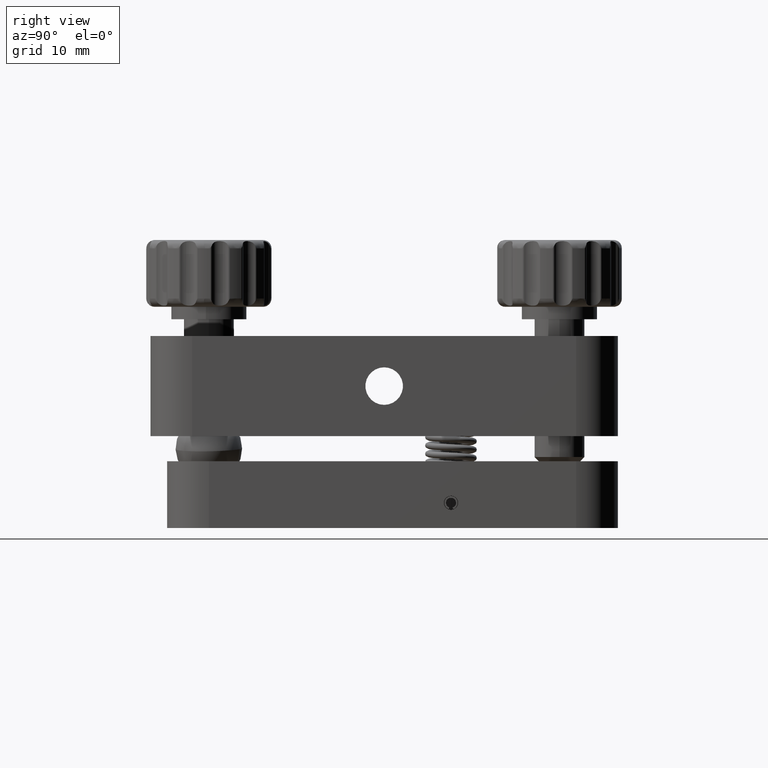
[diagram: clean part render]
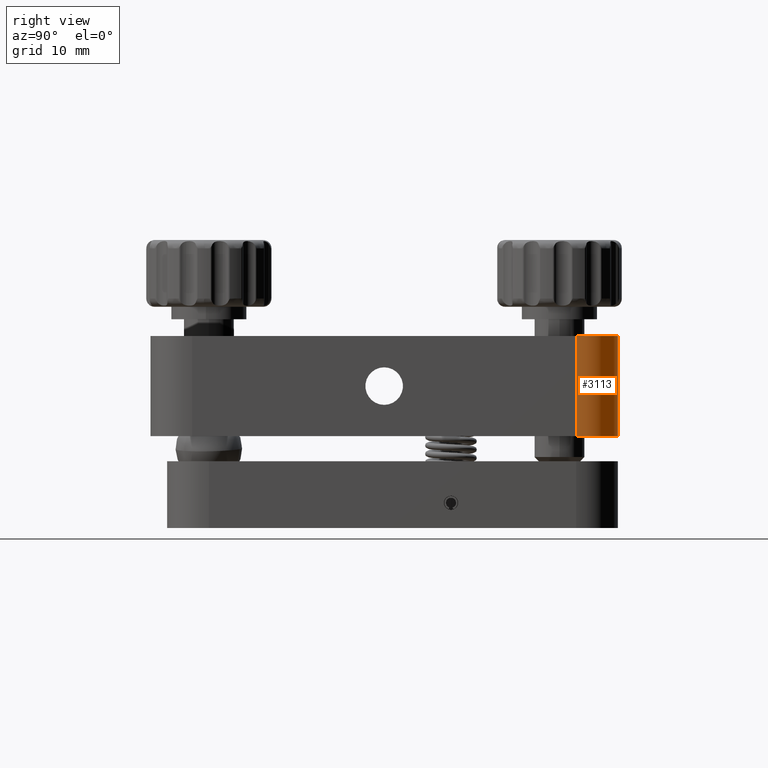
[diagram: same view with one face highlighted and labeled with its STEP entity id]
A machine part, right view. The second image highlights one B-rep face of the part: STEP entity #3113.
In plain terms, the highlighted cylindrical surface (partial cylindrical patch) has radius 5 mm, axis along (0, 0, -1).
Its self-contained STEP definition (entity closure, byte-faithful):
#80 = EDGE_CURVE ( 'NONE', #1971, #18843, #8237, .T. ) ;
#168 = CARTESIAN_POINT ( 'NONE',  ( 22.99999999999996800, 27.99999999999998600, 6.000000000000000000 ) ) ;
#170 = CARTESIAN_POINT ( 'NONE',  ( 22.99999999999996800, 27.99999999999998600, -6.000000000000000000 ) ) ;
#195 = CIRCLE ( 'NONE', #10238, 5.000000000000000900 ) ;
#629 = DIRECTION ( 'NONE',  ( 0.0000000000000000000, 0.0000000000000000000, -1.000000000000000000 ) ) ;
#752 = ORIENTED_EDGE ( 'NONE', *, *, #19584, .T. ) ;
#1575 = CARTESIAN_POINT ( 'NONE',  ( 28.00000000000000400, 22.99999999999995000, -6.000000000000000000 ) ) ;
#1971 = VERTEX_POINT ( 'NONE', #168 ) ;
#2549 = CARTESIAN_POINT ( 'NONE',  ( 22.99999999999996800, 27.99999999999998600, 6.000000000000000000 ) ) ;
#2560 = DIRECTION ( 'NONE',  ( 0.0000000000000000000, 0.0000000000000000000, -1.000000000000000000 ) ) ;
#3113 = ADVANCED_FACE ( 'NONE', ( #6959 ), #13639, .T. ) ;
#3469 = DIRECTION ( 'NONE',  ( 0.0000000000000000000, 0.0000000000000000000, -1.000000000000000000 ) ) ;
#3529 = VERTEX_POINT ( 'NONE', #1575 ) ;
#5265 = ORIENTED_EDGE ( 'NONE', *, *, #20112, .T. ) ;
#5343 = LINE ( 'NONE', #7240, #17918 ) ;
#6507 = CARTESIAN_POINT ( 'NONE',  ( 28.00000000000000400, 22.99999999999995000, 6.000000000000000000 ) ) ;
#6959 = FACE_OUTER_BOUND ( 'NONE', #8418, .T. ) ;
#7240 = CARTESIAN_POINT ( 'NONE',  ( 28.00000000000000400, 22.99999999999995000, 6.000000000000000000 ) ) ;
#7299 = CARTESIAN_POINT ( 'NONE',  ( 23.00000000000000400, 22.99999999999998900, -6.000000000000000000 ) ) ;
#7720 = ORIENTED_EDGE ( 'NONE', *, *, #80, .F. ) ;
#8037 = DIRECTION ( 'NONE',  ( 0.0000000000000000000, 1.000000000000000000, 0.0000000000000000000 ) ) ;
#8237 = LINE ( 'NONE', #2549, #9979 ) ;
#8418 = EDGE_LOOP ( 'NONE', ( #13813, #7720, #752, #5265 ) ) ;
#8676 = DIRECTION ( 'NONE',  ( 0.0000000000000000000, 1.000000000000000000, 0.0000000000000000000 ) ) ;
#8743 = DIRECTION ( 'NONE',  ( 0.0000000000000000000, 0.0000000000000000000, -1.000000000000000000 ) ) ;
#9743 = CARTESIAN_POINT ( 'NONE',  ( 23.00000000000000400, 22.99999999999998900, 6.000000000000000000 ) ) ;
#9979 = VECTOR ( 'NONE', #8743, 1000.000000000000000 ) ;
#10238 = AXIS2_PLACEMENT_3D ( 'NONE', #7299, #2560, #8676 ) ;
#11681 = AXIS2_PLACEMENT_3D ( 'NONE', #15587, #17631, #8037 ) ;
#11770 = CIRCLE ( 'NONE', #11681, 5.000000000000000900 ) ;
#13083 = VERTEX_POINT ( 'NONE', #6507 ) ;
#13639 = CYLINDRICAL_SURFACE ( 'NONE', #15249, 5.000000000000000900 ) ;
#13813 = ORIENTED_EDGE ( 'NONE', *, *, #18476, .F. ) ;
#14486 = DIRECTION ( 'NONE',  ( 0.0000000000000000000, -1.000000000000000000, 0.0000000000000000000 ) ) ;
#15249 = AXIS2_PLACEMENT_3D ( 'NONE', #9743, #3469, #14486 ) ;
#15587 = CARTESIAN_POINT ( 'NONE',  ( 23.00000000000000400, 22.99999999999998900, 6.000000000000000000 ) ) ;
#17631 = DIRECTION ( 'NONE',  ( 0.0000000000000000000, 0.0000000000000000000, -1.000000000000000000 ) ) ;
#17918 = VECTOR ( 'NONE', #629, 1000.000000000000000 ) ;
#18476 = EDGE_CURVE ( 'NONE', #18843, #3529, #195, .T. ) ;
#18843 = VERTEX_POINT ( 'NONE', #170 ) ;
#19584 = EDGE_CURVE ( 'NONE', #1971, #13083, #11770, .T. ) ;
#20112 = EDGE_CURVE ( 'NONE', #13083, #3529, #5343, .T. ) ;